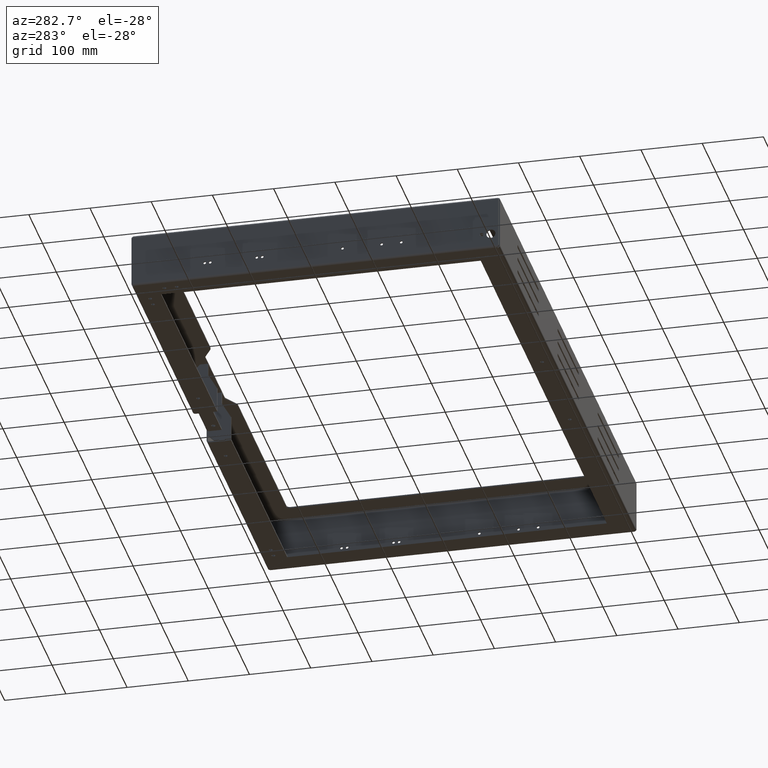
[diagram: clean part render]
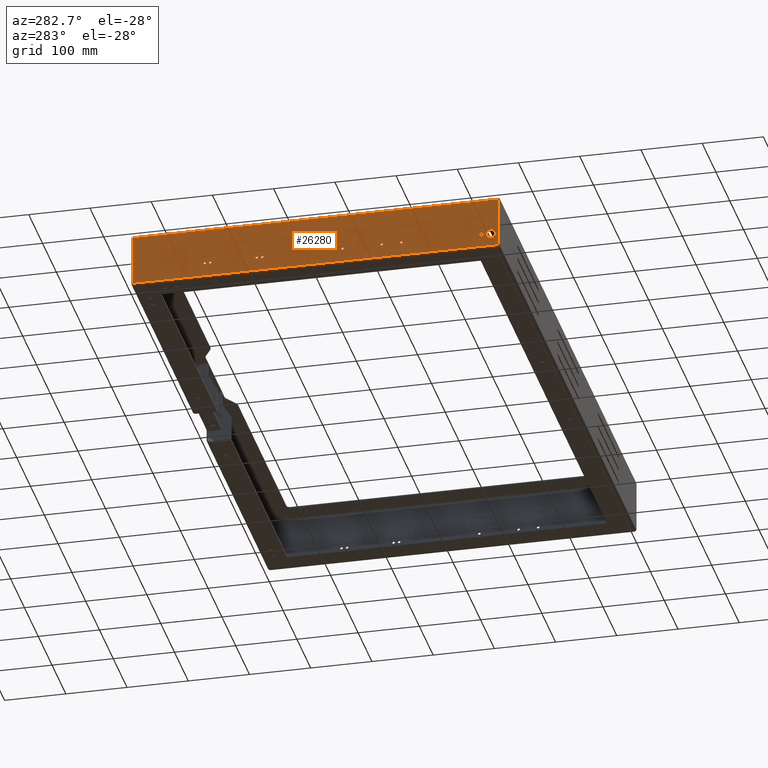
[diagram: same view with one face highlighted and labeled with its STEP entity id]
A machine part, auxiliary view. The second image highlights one B-rep face of the part: STEP entity #26280.
In plain terms, the highlighted planar face has unit normal (-1, 0, 0).
Its self-contained STEP definition (entity closure, byte-faithful):
#354 = DIRECTION ( 'NONE',  ( -1.000000000000000000, -0.0000000000000000000, 3.784851220313033900E-015 ) ) ;
#448 = VECTOR ( 'NONE', #41892, 1000.000000000000000 ) ;
#467 = CARTESIAN_POINT ( 'NONE',  ( -497.0000000000004500, -139.9999999999996900, -63.00000000000000000 ) ) ;
#472 = VERTEX_POINT ( 'NONE', #33076 ) ;
#938 = ORIENTED_EDGE ( 'NONE', *, *, #1351, .T. ) ;
#1269 = CARTESIAN_POINT ( 'NONE',  ( -497.0000000000004500, 96.00000000000032700, -60.75000000000000000 ) ) ;
#1350 = CARTESIAN_POINT ( 'NONE',  ( -497.0000000000004500, 87.00000000000032700, -65.25000000000000000 ) ) ;
#1351 = EDGE_CURVE ( 'NONE', #3916, #45212, #25486, .T. ) ;
#1718 = FACE_OUTER_BOUND ( 'NONE', #35495, .T. ) ;
#1763 = EDGE_LOOP ( 'NONE', ( #21175, #8030 ) ) ;
#2039 = ORIENTED_EDGE ( 'NONE', *, *, #27377, .F. ) ;
#2340 = ORIENTED_EDGE ( 'NONE', *, *, #12506, .F. ) ;
#2469 = DIRECTION ( 'NONE',  ( 0.0000000000000000000, 0.0000000000000000000, 1.000000000000000000 ) ) ;
#2817 = FACE_BOUND ( 'NONE', #43881, .T. ) ;
#3210 = VERTEX_POINT ( 'NONE', #6064 ) ;
#3365 = ORIENTED_EDGE ( 'NONE', *, *, #25619, .F. ) ;
#3496 = DIRECTION ( 'NONE',  ( 7.401486830834357000E-015, 0.0000000000000000000, -1.000000000000000000 ) ) ;
#3691 = VERTEX_POINT ( 'NONE', #32119 ) ;
#3734 = AXIS2_PLACEMENT_3D ( 'NONE', #44053, #23096, #16041 ) ;
#3774 = CARTESIAN_POINT ( 'NONE',  ( -497.0000000000209800, -286.5000000000002300, -65.00000000000376600 ) ) ;
#3916 = VERTEX_POINT ( 'NONE', #38505 ) ;
#4553 = EDGE_LOOP ( 'NONE', ( #15436, #3365 ) ) ;
#4722 = AXIS2_PLACEMENT_3D ( 'NONE', #9441, #30402, #5933 ) ;
#4964 = CARTESIAN_POINT ( 'NONE',  ( -497.0000000000002300, -298.9292893218813600, -3.999999999999995600 ) ) ;
#4976 = FACE_BOUND ( 'NONE', #17318, .T. ) ;
#5296 = ORIENTED_EDGE ( 'NONE', *, *, #12836, .T. ) ;
#5385 = CARTESIAN_POINT ( 'NONE',  ( -497.0000000000004500, -139.9999999999996900, -63.00000000000000000 ) ) ;
#5933 = DIRECTION ( 'NONE',  ( 0.0000000000000000000, 0.0000000000000000000, 1.000000000000000000 ) ) ;
#6064 = CARTESIAN_POINT ( 'NONE',  ( -497.0000000000004500, -107.9999999999996900, -60.75000000000000000 ) ) ;
#6148 = EDGE_CURVE ( 'NONE', #17347, #27827, #16964, .T. ) ;
#6345 = CARTESIAN_POINT ( 'NONE',  ( -497.0000000000004500, 181.0000000000003400, -65.25000000000000000 ) ) ;
#6659 = EDGE_CURVE ( 'NONE', #11171, #19016, #18025, .T. ) ;
#6893 = VECTOR ( 'NONE', #39085, 1000.000000000000000 ) ;
#7095 = PLANE ( 'NONE',  #33832 ) ;
#7196 = EDGE_CURVE ( 'NONE', #9189, #14578, #35483, .T. ) ;
#7235 = DIRECTION ( 'NONE',  ( 7.401486830834357000E-015, 0.0000000000000000000, -1.000000000000000000 ) ) ;
#7244 = DIRECTION ( 'NONE',  ( -1.000000000000000000, 0.0000000000000000000, 3.784851220313033900E-015 ) ) ;
#7271 = EDGE_CURVE ( 'NONE', #44830, #3210, #23988, .T. ) ;
#7709 = AXIS2_PLACEMENT_3D ( 'NONE', #45359, #24365, #3496 ) ;
#7853 = DIRECTION ( 'NONE',  ( -1.000000000000000000, -0.0000000000000000000, 3.784851220313033900E-015 ) ) ;
#7924 = ORIENTED_EDGE ( 'NONE', *, *, #40882, .F. ) ;
#7995 = CIRCLE ( 'NONE', #4722, 2.250000000000001800 ) ;
#8030 = ORIENTED_EDGE ( 'NONE', *, *, #29808, .F. ) ;
#8056 = VERTEX_POINT ( 'NONE', #31709 ) ;
#8316 = CIRCLE ( 'NONE', #18957, 2.250000000000001800 ) ;
#8620 = CARTESIAN_POINT ( 'NONE',  ( -497.0000000000004500, 172.0000000000003400, -63.00000000000000000 ) ) ;
#8805 = DIRECTION ( 'NONE',  ( 0.0000000000000000000, 0.0000000000000000000, 1.000000000000000000 ) ) ;
#9189 = VERTEX_POINT ( 'NONE', #20141 ) ;
#9407 = VERTEX_POINT ( 'NONE', #30419 ) ;
#9441 = CARTESIAN_POINT ( 'NONE',  ( -497.0000000000004500, 172.0000000000003400, -63.00000000000000000 ) ) ;
#9454 = DIRECTION ( 'NONE',  ( -1.000000000000000000, -0.0000000000000000000, 3.784851220313033900E-015 ) ) ;
#9716 = LINE ( 'NONE', #27839, #448 ) ;
#10260 = CARTESIAN_POINT ( 'NONE',  ( -497.0000000000005700, -298.9292893218807300, -86.00000000000000000 ) ) ;
#10361 = CARTESIAN_POINT ( 'NONE',  ( -497.0000000000004500, 96.00000000000032700, -65.25000000000000000 ) ) ;
#10392 = EDGE_LOOP ( 'NONE', ( #42622, #2340 ) ) ;
#10654 = ORIENTED_EDGE ( 'NONE', *, *, #33604, .F. ) ;
#10746 = DIRECTION ( 'NONE',  ( 3.784851220313033900E-015, 0.0000000000000000000, 1.000000000000000000 ) ) ;
#10791 = VERTEX_POINT ( 'NONE', #11755 ) ;
#10963 = FACE_BOUND ( 'NONE', #10392, .T. ) ;
#11171 = VERTEX_POINT ( 'NONE', #12304 ) ;
#11330 = ORIENTED_EDGE ( 'NONE', *, *, #32739, .T. ) ;
#11442 = EDGE_CURVE ( 'NONE', #18120, #41646, #11625, .T. ) ;
#11625 = CIRCLE ( 'NONE', #36617, 2.250000000000001800 ) ;
#11755 = CARTESIAN_POINT ( 'NONE',  ( -497.0000000000209200, -286.5000000000002300, -72.50000000000378000 ) ) ;
#12083 = CARTESIAN_POINT ( 'NONE',  ( -497.0000000000004500, 181.0000000000003400, -60.75000000000000000 ) ) ;
#12152 = DIRECTION ( 'NONE',  ( 0.0000000000000000000, 0.0000000000000000000, 1.000000000000000000 ) ) ;
#12304 = CARTESIAN_POINT ( 'NONE',  ( -497.0000000000004500, -139.9999999999996900, -60.75000000000000000 ) ) ;
#12306 = CARTESIAN_POINT ( 'NONE',  ( -497.0000000000004500, -107.9999999999996900, -63.00000000000000000 ) ) ;
#12506 = EDGE_CURVE ( 'NONE', #27827, #17347, #14838, .T. ) ;
#12706 = CARTESIAN_POINT ( 'NONE',  ( -497.0000000000002300, 298.9292893218813600, -1.999999999999992700 ) ) ;
#12836 = EDGE_CURVE ( 'NONE', #45212, #34393, #41073, .T. ) ;
#14252 = DIRECTION ( 'NONE',  ( 0.0000000000000000000, 0.0000000000000000000, 1.000000000000000000 ) ) ;
#14320 = DIRECTION ( 'NONE',  ( -1.000000000000000000, -0.0000000000000000000, 3.784851220313033900E-015 ) ) ;
#14363 = EDGE_CURVE ( 'NONE', #19016, #11171, #22332, .T. ) ;
#14368 = CARTESIAN_POINT ( 'NONE',  ( -497.0000000000004500, 87.00000000000032700, -63.00000000000000000 ) ) ;
#14430 = CARTESIAN_POINT ( 'NONE',  ( -497.0000000000004500, -271.5000000000002800, -65.00000000000000000 ) ) ;
#14578 = VERTEX_POINT ( 'NONE', #40583 ) ;
#14838 = CIRCLE ( 'NONE', #37807, 2.250000000000001800 ) ;
#15436 = ORIENTED_EDGE ( 'NONE', *, *, #43624, .F. ) ;
#16041 = DIRECTION ( 'NONE',  ( 0.0000000000000000000, 0.0000000000000000000, 1.000000000000000000 ) ) ;
#16964 = CIRCLE ( 'NONE', #18874, 2.250000000000001800 ) ;
#17162 = CARTESIAN_POINT ( 'NONE',  ( -497.0000000000004500, 181.0000000000003400, -63.00000000000000000 ) ) ;
#17318 = EDGE_LOOP ( 'NONE', ( #18517, #36924 ) ) ;
#17347 = VERTEX_POINT ( 'NONE', #19902 ) ;
#17585 = CIRCLE ( 'NONE', #43499, 2.250000000000001800 ) ;
#17845 = DIRECTION ( 'NONE',  ( 0.0000000000000000000, 0.0000000000000000000, 1.000000000000000000 ) ) ;
#17847 = DIRECTION ( 'NONE',  ( 0.0000000000000000000, 0.0000000000000000000, 1.000000000000000000 ) ) ;
#17876 = EDGE_CURVE ( 'NONE', #8056, #21797, #34160, .T. ) ;
#17883 = ORIENTED_EDGE ( 'NONE', *, *, #6659, .F. ) ;
#18025 = CIRCLE ( 'NONE', #19457, 2.250000000000001800 ) ;
#18120 = VERTEX_POINT ( 'NONE', #1269 ) ;
#18397 = CARTESIAN_POINT ( 'NONE',  ( -497.0000000000004500, -139.9999999999996900, -65.25000000000000000 ) ) ;
#18421 = AXIS2_PLACEMENT_3D ( 'NONE', #18863, #43366, #22383 ) ;
#18472 = CIRCLE ( 'NONE', #21109, 7.500000000000020400 ) ;
#18517 = ORIENTED_EDGE ( 'NONE', *, *, #25000, .T. ) ;
#18863 = CARTESIAN_POINT ( 'NONE',  ( -497.0000000000004500, -43.99999999999969400, -63.00000000000000000 ) ) ;
#18874 = AXIS2_PLACEMENT_3D ( 'NONE', #14368, #42341, #17847 ) ;
#18957 = AXIS2_PLACEMENT_3D ( 'NONE', #8620, #33102, #12152 ) ;
#19016 = VERTEX_POINT ( 'NONE', #18397 ) ;
#19228 = CARTESIAN_POINT ( 'NONE',  ( -497.0000000000004500, 172.0000000000003400, -65.25000000000000000 ) ) ;
#19457 = AXIS2_PLACEMENT_3D ( 'NONE', #467, #21389, #17845 ) ;
#19902 = CARTESIAN_POINT ( 'NONE',  ( -497.0000000000004500, 87.00000000000032700, -60.75000000000000000 ) ) ;
#19982 = CARTESIAN_POINT ( 'NONE',  ( -497.0000000000002300, -298.9292893218813600, -1.993580514287124000E-013 ) ) ;
#20050 = DIRECTION ( 'NONE',  ( 0.0000000000000000000, 0.0000000000000000000, 1.000000000000000000 ) ) ;
#20134 = EDGE_LOOP ( 'NONE', ( #17883, #34375 ) ) ;
#20141 = CARTESIAN_POINT ( 'NONE',  ( -497.0000000000004500, -271.5000000000002800, -69.00000000000001400 ) ) ;
#20168 = VERTEX_POINT ( 'NONE', #19228 ) ;
#20258 = FACE_BOUND ( 'NONE', #27332, .T. ) ;
#20712 = DIRECTION ( 'NONE',  ( 0.0000000000000000000, 0.0000000000000000000, 1.000000000000000000 ) ) ;
#21109 = AXIS2_PLACEMENT_3D ( 'NONE', #3774, #28190, #7235 ) ;
#21175 = ORIENTED_EDGE ( 'NONE', *, *, #11442, .F. ) ;
#21336 = CARTESIAN_POINT ( 'NONE',  ( -497.0000000000004500, 96.00000000000032700, -63.00000000000000000 ) ) ;
#21362 = FACE_BOUND ( 'NONE', #43585, .T. ) ;
#21389 = DIRECTION ( 'NONE',  ( -1.000000000000000000, -0.0000000000000000000, 3.784851220313033900E-015 ) ) ;
#21797 = VERTEX_POINT ( 'NONE', #36480 ) ;
#22332 = CIRCLE ( 'NONE', #41106, 2.250000000000001800 ) ;
#22383 = DIRECTION ( 'NONE',  ( 0.0000000000000000000, 0.0000000000000000000, 1.000000000000000000 ) ) ;
#22499 = AXIS2_PLACEMENT_3D ( 'NONE', #21336, #14320, #35241 ) ;
#22604 = DIRECTION ( 'NONE',  ( -1.000000000000000000, -0.0000000000000000000, 3.784851220313033900E-015 ) ) ;
#23096 = DIRECTION ( 'NONE',  ( -1.000000000000000000, -0.0000000000000000000, 3.784851220313033900E-015 ) ) ;
#23303 = AXIS2_PLACEMENT_3D ( 'NONE', #14430, #22604, #27025 ) ;
#23401 = ORIENTED_EDGE ( 'NONE', *, *, #17876, .F. ) ;
#23988 = CIRCLE ( 'NONE', #31833, 2.250000000000001800 ) ;
#24365 = DIRECTION ( 'NONE',  ( 1.000000000000000000, 0.0000000000000000000, 3.784851220313033900E-015 ) ) ;
#24450 = ORIENTED_EDGE ( 'NONE', *, *, #34119, .F. ) ;
#24759 = CARTESIAN_POINT ( 'NONE',  ( -497.0000000000004500, -43.99999999999969400, -63.00000000000000000 ) ) ;
#25000 = EDGE_CURVE ( 'NONE', #10791, #9407, #37306, .T. ) ;
#25277 = CARTESIAN_POINT ( 'NONE',  ( -497.0000000000004500, 96.00000000000032700, -63.00000000000000000 ) ) ;
#25486 = LINE ( 'NONE', #35608, #6893 ) ;
#25619 = EDGE_CURVE ( 'NONE', #34457, #31740, #17585, .T. ) ;
#26280 = ADVANCED_FACE ( 'NONE', ( #4976, #21362, #39951, #30689, #2817, #38830, #29593, #20258, #10963, #1718 ), #7095, .T. ) ;
#26309 = DIRECTION ( 'NONE',  ( 0.0000000000000000000, 0.0000000000000000000, 1.000000000000000000 ) ) ;
#27025 = DIRECTION ( 'NONE',  ( 0.0000000000000000000, 0.0000000000000000000, 1.000000000000000000 ) ) ;
#27095 = CARTESIAN_POINT ( 'NONE',  ( -497.0000000000004500, -107.9999999999996900, -63.00000000000000000 ) ) ;
#27332 = EDGE_LOOP ( 'NONE', ( #10654, #44663 ) ) ;
#27377 = EDGE_CURVE ( 'NONE', #14578, #9189, #35475, .T. ) ;
#27590 = CARTESIAN_POINT ( 'NONE',  ( -497.0000000000004500, 87.00000000000032700, -63.00000000000000000 ) ) ;
#27744 = DIRECTION ( 'NONE',  ( -1.000000000000000000, -0.0000000000000000000, 3.784851220313033900E-015 ) ) ;
#27827 = VERTEX_POINT ( 'NONE', #1350 ) ;
#27839 = CARTESIAN_POINT ( 'NONE',  ( -497.0000000000002300, 0.0000000000000000000, -3.999999999999995600 ) ) ;
#28190 = DIRECTION ( 'NONE',  ( 1.000000000000000000, 0.0000000000000000000, 3.784851220313033900E-015 ) ) ;
#28465 = ORIENTED_EDGE ( 'NONE', *, *, #31131, .F. ) ;
#28808 = DIRECTION ( 'NONE',  ( 0.0000000000000000000, 0.0000000000000000000, 1.000000000000000000 ) ) ;
#29593 = FACE_BOUND ( 'NONE', #20134, .T. ) ;
#29808 = EDGE_CURVE ( 'NONE', #41646, #18120, #37292, .T. ) ;
#30160 = DIRECTION ( 'NONE',  ( 3.784851220313033900E-015, -6.982962677686267500E-015, 1.000000000000000000 ) ) ;
#30402 = DIRECTION ( 'NONE',  ( -1.000000000000000000, -0.0000000000000000000, 3.784851220313033900E-015 ) ) ;
#30418 = CARTESIAN_POINT ( 'NONE',  ( -497.0000000000004500, 181.0000000000003400, -63.00000000000000000 ) ) ;
#30419 = CARTESIAN_POINT ( 'NONE',  ( -497.0000000000210300, -286.5000000000002300, -57.50000000000375200 ) ) ;
#30689 = FACE_BOUND ( 'NONE', #1763, .T. ) ;
#31129 = DIRECTION ( 'NONE',  ( 0.0000000000000000000, 0.0000000000000000000, 1.000000000000000000 ) ) ;
#31131 = EDGE_CURVE ( 'NONE', #3916, #472, #42684, .T. ) ;
#31709 = CARTESIAN_POINT ( 'NONE',  ( -497.0000000000004500, -43.99999999999969400, -60.75000000000000000 ) ) ;
#31728 = CARTESIAN_POINT ( 'NONE',  ( -497.0000000000002300, 0.0000000000000000000, 1.888054019173265200E-012 ) ) ;
#31740 = VERTEX_POINT ( 'NONE', #12083 ) ;
#31798 = VECTOR ( 'NONE', #41096, 1000.000000000000000 ) ;
#31833 = AXIS2_PLACEMENT_3D ( 'NONE', #27095, #44559, #20050 ) ;
#31849 = CIRCLE ( 'NONE', #37830, 2.250000000000001800 ) ;
#32119 = CARTESIAN_POINT ( 'NONE',  ( -497.0000000000004500, 172.0000000000003400, -60.75000000000000000 ) ) ;
#32739 = EDGE_CURVE ( 'NONE', #34393, #472, #9716, .T. ) ;
#33076 = CARTESIAN_POINT ( 'NONE',  ( -497.0000000000002300, 298.9292893218813600, -3.999999999999995600 ) ) ;
#33102 = DIRECTION ( 'NONE',  ( -1.000000000000000000, -0.0000000000000000000, 3.784851220313033900E-015 ) ) ;
#33272 = DIRECTION ( 'NONE',  ( -1.000000000000000000, -0.0000000000000000000, 3.784851220313033900E-015 ) ) ;
#33374 = DIRECTION ( 'NONE',  ( -1.000000000000000000, -0.0000000000000000000, 3.784851220313033900E-015 ) ) ;
#33562 = AXIS2_PLACEMENT_3D ( 'NONE', #24759, #354, #14252 ) ;
#33604 = EDGE_CURVE ( 'NONE', #3691, #20168, #7995, .T. ) ;
#33832 = AXIS2_PLACEMENT_3D ( 'NONE', #31728, #7244, #10746 ) ;
#34119 = EDGE_CURVE ( 'NONE', #3210, #44830, #40766, .T. ) ;
#34160 = CIRCLE ( 'NONE', #33562, 2.250000000000001800 ) ;
#34375 = ORIENTED_EDGE ( 'NONE', *, *, #14363, .F. ) ;
#34393 = VERTEX_POINT ( 'NONE', #4964 ) ;
#34457 = VERTEX_POINT ( 'NONE', #6345 ) ;
#35241 = DIRECTION ( 'NONE',  ( 0.0000000000000000000, 0.0000000000000000000, 1.000000000000000000 ) ) ;
#35475 = CIRCLE ( 'NONE', #23303, 4.000000000000003600 ) ;
#35479 = ORIENTED_EDGE ( 'NONE', *, *, #7271, .F. ) ;
#35483 = CIRCLE ( 'NONE', #3734, 4.000000000000003600 ) ;
#35495 = EDGE_LOOP ( 'NONE', ( #28465, #938, #5296, #11330 ) ) ;
#35543 = CIRCLE ( 'NONE', #18421, 2.250000000000001800 ) ;
#35608 = CARTESIAN_POINT ( 'NONE',  ( -497.0000000000005700, 298.9292893218819800, -86.00000000000001400 ) ) ;
#35964 = CARTESIAN_POINT ( 'NONE',  ( -497.0000000000004500, -107.9999999999996900, -65.25000000000000000 ) ) ;
#36027 = EDGE_LOOP ( 'NONE', ( #24450, #35479 ) ) ;
#36375 = AXIS2_PLACEMENT_3D ( 'NONE', #12306, #33272, #8805 ) ;
#36480 = CARTESIAN_POINT ( 'NONE',  ( -497.0000000000004500, -43.99999999999969400, -65.25000000000000000 ) ) ;
#36617 = AXIS2_PLACEMENT_3D ( 'NONE', #25277, #7853, #28808 ) ;
#36924 = ORIENTED_EDGE ( 'NONE', *, *, #42188, .T. ) ;
#37292 = CIRCLE ( 'NONE', #22499, 2.250000000000001800 ) ;
#37306 = CIRCLE ( 'NONE', #7709, 7.500000000000020400 ) ;
#37807 = AXIS2_PLACEMENT_3D ( 'NONE', #27590, #27744, #31129 ) ;
#37830 = AXIS2_PLACEMENT_3D ( 'NONE', #17162, #41673, #20712 ) ;
#38505 = CARTESIAN_POINT ( 'NONE',  ( -497.0000000000005700, 298.9292893218819800, -86.00000000000001400 ) ) ;
#38830 = FACE_BOUND ( 'NONE', #36027, .T. ) ;
#39085 = DIRECTION ( 'NONE',  ( 0.0000000000000000000, -1.000000000000000000, 0.0000000000000000000 ) ) ;
#39470 = EDGE_CURVE ( 'NONE', #20168, #3691, #8316, .T. ) ;
#39951 = FACE_BOUND ( 'NONE', #4553, .T. ) ;
#40583 = CARTESIAN_POINT ( 'NONE',  ( -497.0000000000004500, -271.5000000000002800, -61.00000000000001400 ) ) ;
#40766 = CIRCLE ( 'NONE', #36375, 2.250000000000001800 ) ;
#40882 = EDGE_CURVE ( 'NONE', #21797, #8056, #35543, .T. ) ;
#41073 = LINE ( 'NONE', #19982, #31798 ) ;
#41096 = DIRECTION ( 'NONE',  ( 3.784851220313033900E-015, -6.982962677686267500E-015, 1.000000000000000000 ) ) ;
#41106 = AXIS2_PLACEMENT_3D ( 'NONE', #5385, #33374, #26309 ) ;
#41581 = VECTOR ( 'NONE', #30160, 1000.000000000000000 ) ;
#41646 = VERTEX_POINT ( 'NONE', #10361 ) ;
#41673 = DIRECTION ( 'NONE',  ( -1.000000000000000000, -0.0000000000000000000, 3.784851220313033900E-015 ) ) ;
#41892 = DIRECTION ( 'NONE',  ( 0.0000000000000000000, 1.000000000000000000, 0.0000000000000000000 ) ) ;
#42188 = EDGE_CURVE ( 'NONE', #9407, #10791, #18472, .T. ) ;
#42341 = DIRECTION ( 'NONE',  ( -1.000000000000000000, -0.0000000000000000000, 3.784851220313033900E-015 ) ) ;
#42622 = ORIENTED_EDGE ( 'NONE', *, *, #6148, .F. ) ;
#42684 = LINE ( 'NONE', #12706, #41581 ) ;
#43366 = DIRECTION ( 'NONE',  ( -1.000000000000000000, -0.0000000000000000000, 3.784851220313033900E-015 ) ) ;
#43499 = AXIS2_PLACEMENT_3D ( 'NONE', #30418, #9454, #2469 ) ;
#43585 = EDGE_LOOP ( 'NONE', ( #2039, #45399 ) ) ;
#43624 = EDGE_CURVE ( 'NONE', #31740, #34457, #31849, .T. ) ;
#43881 = EDGE_LOOP ( 'NONE', ( #23401, #7924 ) ) ;
#44053 = CARTESIAN_POINT ( 'NONE',  ( -497.0000000000004500, -271.5000000000002800, -65.00000000000000000 ) ) ;
#44559 = DIRECTION ( 'NONE',  ( -1.000000000000000000, -0.0000000000000000000, 3.784851220313033900E-015 ) ) ;
#44663 = ORIENTED_EDGE ( 'NONE', *, *, #39470, .F. ) ;
#44830 = VERTEX_POINT ( 'NONE', #35964 ) ;
#45212 = VERTEX_POINT ( 'NONE', #10260 ) ;
#45359 = CARTESIAN_POINT ( 'NONE',  ( -497.0000000000209800, -286.5000000000002300, -65.00000000000376600 ) ) ;
#45399 = ORIENTED_EDGE ( 'NONE', *, *, #7196, .F. ) ;